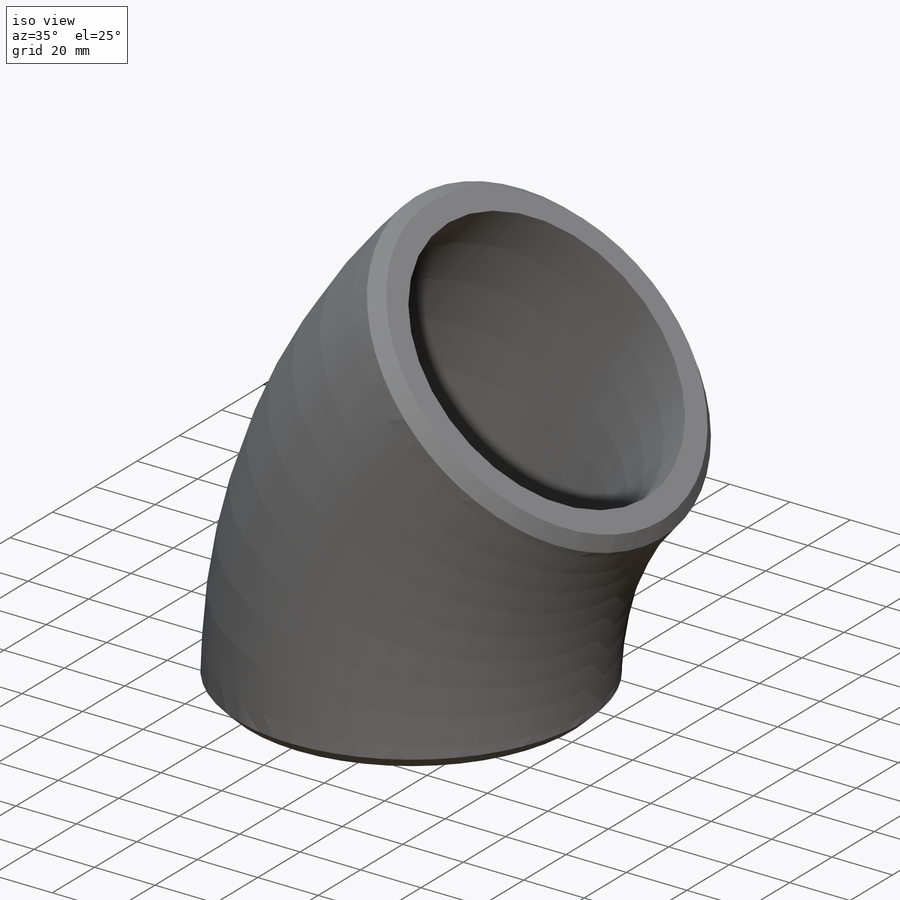
[diagram: iso view]
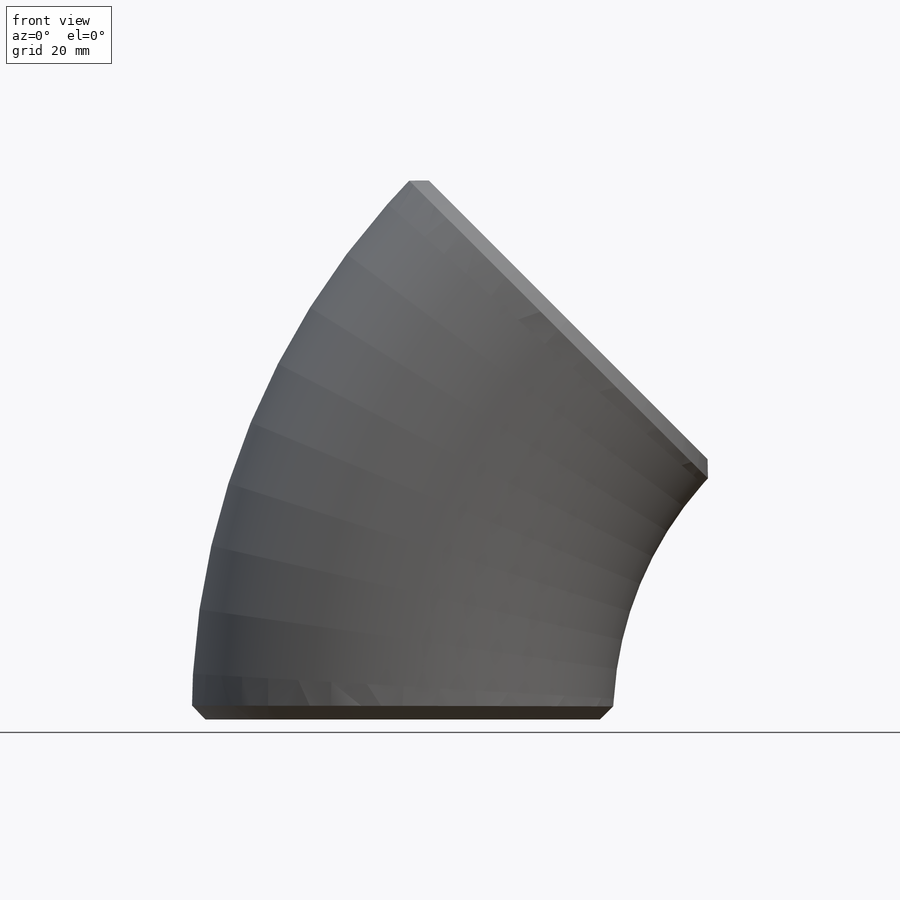
[diagram: front view]
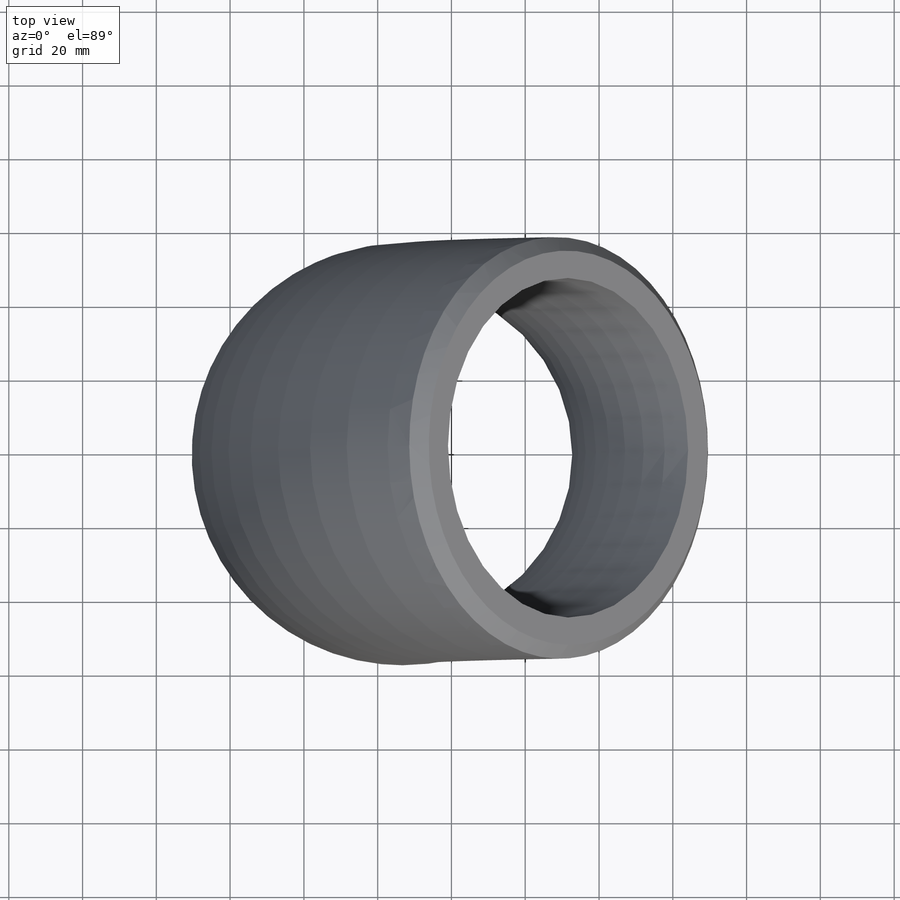
[diagram: top view]
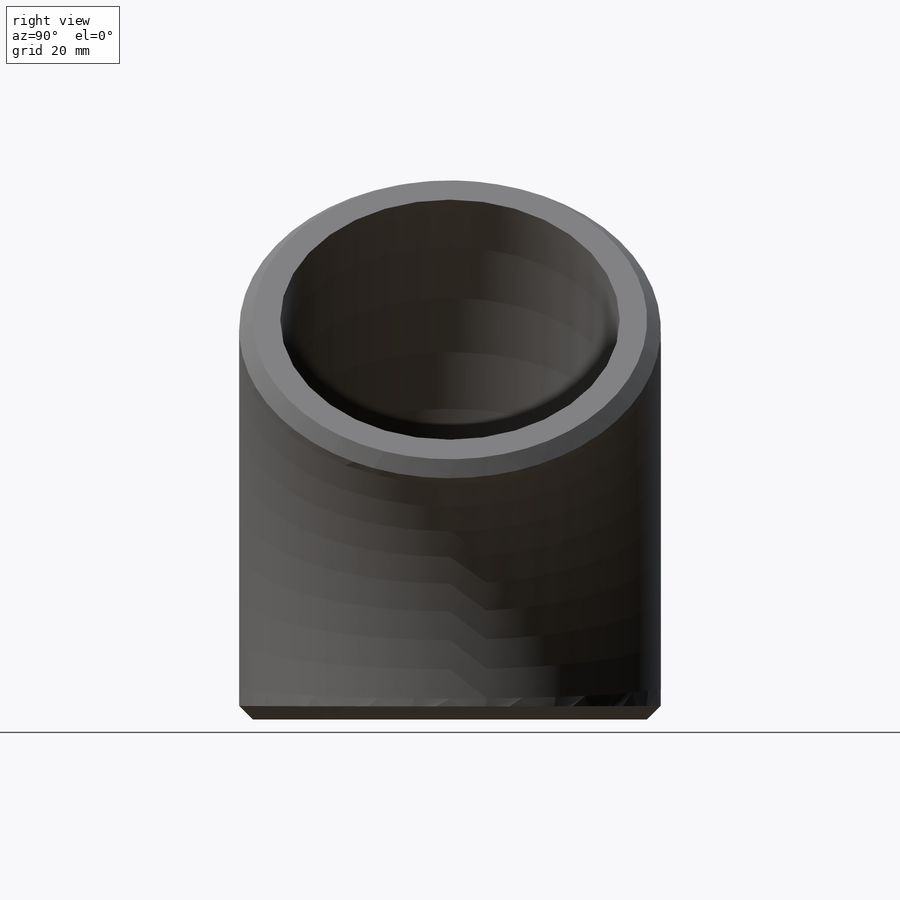
[diagram: right view]
SOLIDWORKS PART (.sldprt)
format: sldprt  version: not decoded by parser v0  size: 614,912 bytes
history: native  units: mm
features: plane x3, sketch x3, shell x2, chamfer x2, material x1, sweep x1 + 1 further entry (+12 scaffold rows collapsed)
feature tree (25):
  scaffold x12  (default folders/planes/origin — collapsed)
  material  "Material <not specified>"
  plane  "front"
  plane  "top"
  plane  "side"
  "Design Table"
  sketch  "Route"  dims[Diameter=114.3mm BendRadius=153.289mm]
  sketch  "ElbowArc"  dims[Bend Radius A=38.1mm A'=72.0mm A=38.1mm D1=72.0mm D2=38.1mm BendAngle=45.0deg]
  sweep  "Elbow"
  shell  "ElbowShell"  Thickness=8.5598mm Wall Thickness=8.5598mm
  chamfer  "ElbowChamfer"  Distance=2.853267mm Angle=45deg ChamferDist=2.853267mm ChamferAngle=45deg
  sketch  "Sketch1"  dims[Diameter=101.6mm StubLength=0.0mm]
  shell  "CPoint2"  [1 undecoded]
  chamfer  "Axis2"  Distance=101.6mm Diameter=101.6mm StubLength=0mm
decode coverage: 6 of 8 modeling features carry decoded parameters; 1 rows unclassified (native names shown)
note: 1 parameter value undecoded
note: suppression state not decoded; provenance and decode notes live in map.json
